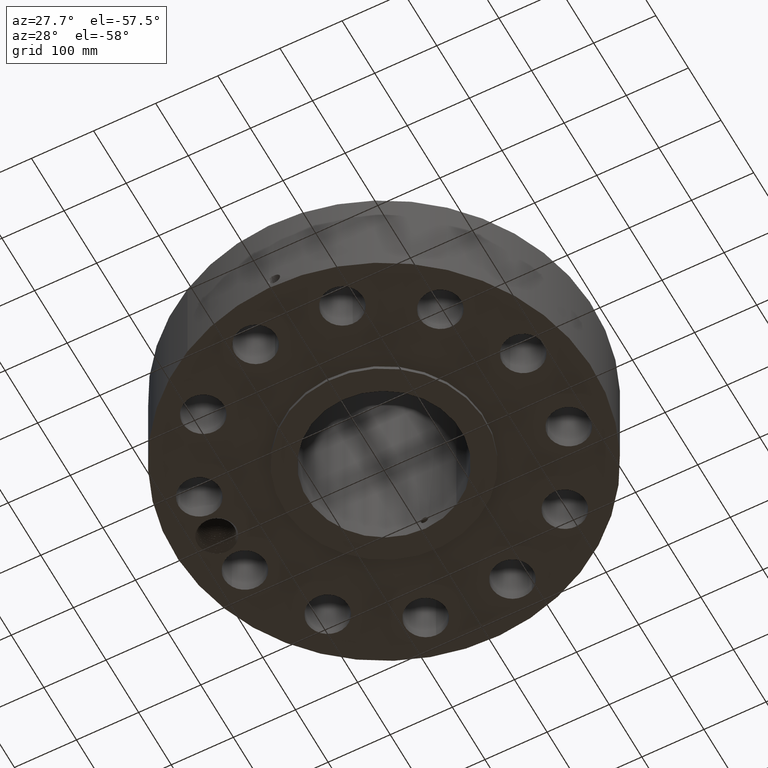
[diagram: clean part render]
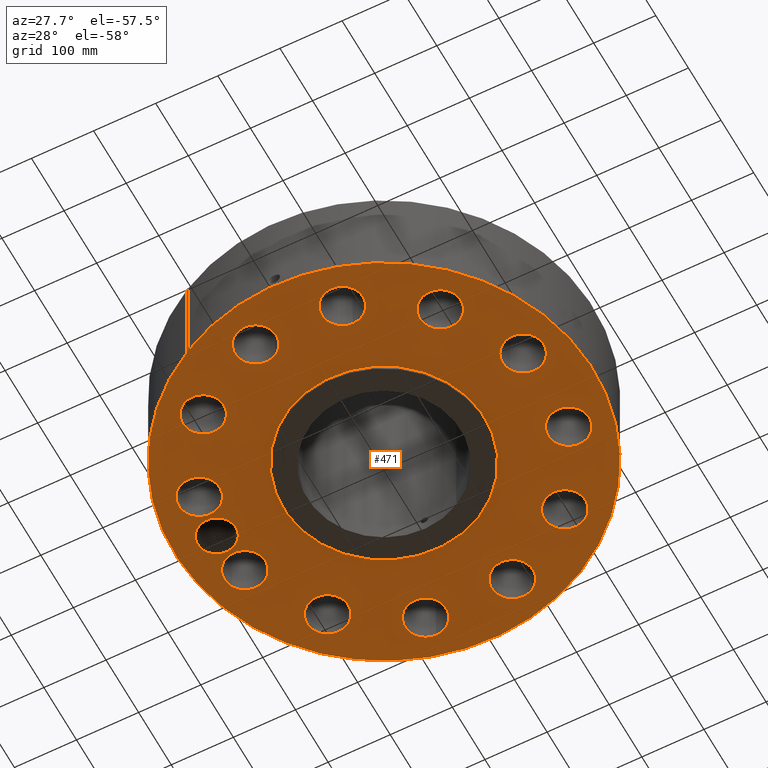
[diagram: same view with one face highlighted and labeled with its STEP entity id]
A machine part, auxiliary view. The second image highlights one B-rep face of the part: STEP entity #471.
In plain terms, the highlighted planar face has unit normal (0, 0, -1).
Its self-contained STEP definition (entity closure, byte-faithful):
#42=AXIS2_PLACEMENT_3D('Circle Axis2P3D',#40,#41,$) ;
#165=AXIS2_PLACEMENT_3D('Plane Axis2P3D',#162,#163,#164) ;
#169=AXIS2_PLACEMENT_3D('Circle Axis2P3D',#167,#168,$) ;
#178=AXIS2_PLACEMENT_3D('Circle Axis2P3D',#176,#177,$) ;
#187=AXIS2_PLACEMENT_3D('Circle Axis2P3D',#185,#186,$) ;
#239=AXIS2_PLACEMENT_3D('Circle Axis2P3D',#237,#238,$) ;
#248=AXIS2_PLACEMENT_3D('Circle Axis2P3D',#246,#247,$) ;
#257=AXIS2_PLACEMENT_3D('Circle Axis2P3D',#255,#256,$) ;
#266=AXIS2_PLACEMENT_3D('Circle Axis2P3D',#264,#265,$) ;
#275=AXIS2_PLACEMENT_3D('Circle Axis2P3D',#273,#274,$) ;
#284=AXIS2_PLACEMENT_3D('Circle Axis2P3D',#282,#283,$) ;
#293=AXIS2_PLACEMENT_3D('Circle Axis2P3D',#291,#292,$) ;
#302=AXIS2_PLACEMENT_3D('Circle Axis2P3D',#300,#301,$) ;
#311=AXIS2_PLACEMENT_3D('Circle Axis2P3D',#309,#310,$) ;
#320=AXIS2_PLACEMENT_3D('Circle Axis2P3D',#318,#319,$) ;
#329=AXIS2_PLACEMENT_3D('Circle Axis2P3D',#327,#328,$) ;
#338=AXIS2_PLACEMENT_3D('Circle Axis2P3D',#336,#337,$) ;
#347=AXIS2_PLACEMENT_3D('Circle Axis2P3D',#345,#346,$) ;
#356=AXIS2_PLACEMENT_3D('Circle Axis2P3D',#354,#355,$) ;
#365=AXIS2_PLACEMENT_3D('Circle Axis2P3D',#363,#364,$) ;
#374=AXIS2_PLACEMENT_3D('Circle Axis2P3D',#372,#373,$) ;
#383=AXIS2_PLACEMENT_3D('Circle Axis2P3D',#381,#382,$) ;
#392=AXIS2_PLACEMENT_3D('Circle Axis2P3D',#390,#391,$) ;
#401=AXIS2_PLACEMENT_3D('Circle Axis2P3D',#399,#400,$) ;
#410=AXIS2_PLACEMENT_3D('Circle Axis2P3D',#408,#409,$) ;
#419=AXIS2_PLACEMENT_3D('Circle Axis2P3D',#417,#418,$) ;
#428=AXIS2_PLACEMENT_3D('Circle Axis2P3D',#426,#427,$) ;
#437=AXIS2_PLACEMENT_3D('Circle Axis2P3D',#435,#436,$) ;
#446=AXIS2_PLACEMENT_3D('Circle Axis2P3D',#444,#445,$) ;
#455=AXIS2_PLACEMENT_3D('Circle Axis2P3D',#453,#454,$) ;
#464=AXIS2_PLACEMENT_3D('Circle Axis2P3D',#462,#463,$) ;
#40=CARTESIAN_POINT('Axis2P3D Location',(0.,0.,0.250000000001)) ;
#44=CARTESIAN_POINT('Vertex',(-6.35238838653,-11.6279689451,0.250000000001)) ;
#46=CARTESIAN_POINT('Vertex',(6.35238838653,11.6279689451,0.250000000001)) ;
#162=CARTESIAN_POINT('Axis2P3D Location',(0.,6.37500000003,0.250000000001)) ;
#167=CARTESIAN_POINT('Axis2P3D Location',(0.,0.,0.250000000001)) ;
#176=CARTESIAN_POINT('Axis2P3D Location',(-10.625,-1.1189649382E-015,0.250000000001)) ;
#180=CARTESIAN_POINT('Vertex',(-11.6649353359,0.568119263248,0.250000000001)) ;
#182=CARTESIAN_POINT('Vertex',(-10.6839916164,1.18353073015,0.250000000001)) ;
#185=CARTESIAN_POINT('Axis2P3D Location',(-10.625,-1.1189649382E-015,0.250000000001)) ;
#189=CARTESIAN_POINT('Vertex',(-10.6838744577,-1.18353656397,0.250000000001)) ;
#193=CARTESIAN_POINT('Control Point',(-9.37500000004,-3.35689481461E-015,0.250000000001)) ;
#194=CARTESIAN_POINT('Control Point',(-9.37825587713,-0.101444429286,0.250000000001)) ;
#195=CARTESIAN_POINT('Control Point',(-9.39180824717,-0.202401712864,0.250000000001)) ;
#196=CARTESIAN_POINT('Control Point',(-9.41558391048,-0.301441935531,0.250000000001)) ;
#197=CARTESIAN_POINT('Control Point',(-9.48288157817,-0.492990549443,0.250000000001)) ;
#198=CARTESIAN_POINT('Control Point',(-9.58713976057,-0.66629663446,0.250000000001)) ;
#199=CARTESIAN_POINT('Control Point',(-9.64791460144,-0.747169624272,0.250000000001)) ;
#200=CARTESIAN_POINT('Control Point',(-9.78496476851,-0.895071338881,0.250000000001)) ;
#201=CARTESIAN_POINT('Control Point',(-9.94868670996,-1.0115838403,0.250000000001)) ;
#202=CARTESIAN_POINT('Control Point',(-10.0361740958,-1.06109943653,0.250000000001)) ;
#203=CARTESIAN_POINT('Control Point',(-10.2144180942,-1.13885720551,0.250000000001)) ;
#204=CARTESIAN_POINT('Control Point',(-10.4039291192,-1.17941143356,0.250000000001)) ;
#205=CARTESIAN_POINT('Control Point',(-10.4973309572,-1.1899772707,0.250000000001)) ;
#206=CARTESIAN_POINT('Control Point',(-10.591046865,-1.19131458735,0.250000000001)) ;
#207=CARTESIAN_POINT('Control Point',(-10.6838744577,-1.18353656397,0.250000000001)) ;
#208=CARTESIAN_POINT('Vertex',(-9.37500000004,-7.83275456743E-015,0.250000000001)) ;
#212=CARTESIAN_POINT('Control Point',(-9.37500000004,-7.83275456743E-015,0.250000000001)) ;
#213=CARTESIAN_POINT('Control Point',(-9.37825524691,0.10142479263,0.250000000001)) ;
#214=CARTESIAN_POINT('Control Point',(-9.39180301368,0.202362779508,0.250000000001)) ;
#215=CARTESIAN_POINT('Control Point',(-9.41557891566,0.3014048971,0.250000000001)) ;
#216=CARTESIAN_POINT('Control Point',(-9.48287057806,0.492934525233,0.250000000001)) ;
#217=CARTESIAN_POINT('Control Point',(-9.58716256325,0.666307567772,0.250000000001)) ;
#218=CARTESIAN_POINT('Control Point',(-9.64794897145,0.747207601566,0.250000000001)) ;
#219=CARTESIAN_POINT('Control Point',(-9.78500526599,0.895116365231,0.250000000001)) ;
#220=CARTESIAN_POINT('Control Point',(-9.948796519,1.01165462046,0.250000000001)) ;
#221=CARTESIAN_POINT('Control Point',(-10.0362929583,1.0611581642,0.250000000001)) ;
#222=CARTESIAN_POINT('Control Point',(-10.1805973746,1.12407483148,0.250000000001)) ;
#223=CARTESIAN_POINT('Control Point',(-10.3322409785,1.16261205979,0.250000000001)) ;
#224=CARTESIAN_POINT('Control Point',(-10.3880840888,1.17332132365,0.250000000001)) ;
#225=CARTESIAN_POINT('Control Point',(-10.4808932074,1.18546280435,0.250000000001)) ;
#226=CARTESIAN_POINT('Control Point',(-10.5741700804,1.18847147679,0.250000000001)) ;
#227=CARTESIAN_POINT('Control Point',(-10.6108759843,1.18823752554,0.250000000001)) ;
#228=CARTESIAN_POINT('Control Point',(-10.6475073854,1.18658794481,0.250000000001)) ;
#229=CARTESIAN_POINT('Control Point',(-10.6839916164,1.18353073015,0.250000000001)) ;
#237=CARTESIAN_POINT('Axis2P3D Location',(10.2629619044,-2.74995235423,0.250000000001)) ;
#241=CARTESIAN_POINT('Vertex',(11.4125950604,-3.3779998098,0.250000000001)) ;
#243=CARTESIAN_POINT('Vertex',(9.11332874828,-2.12190489865,0.250000000001)) ;
#246=CARTESIAN_POINT('Axis2P3D Location',(10.2629619044,-2.74995235423,0.250000000001)) ;
#255=CARTESIAN_POINT('Axis2P3D Location',(0.,0.,0.250000000001)) ;
#259=CARTESIAN_POINT('Vertex',(3.05633780861,5.59458883207,0.250000000001)) ;
#261=CARTESIAN_POINT('Vertex',(-3.05633780861,-5.59458883207,0.250000000001)) ;
#264=CARTESIAN_POINT('Axis2P3D Location',(0.,0.,0.250000000001)) ;
#273=CARTESIAN_POINT('Axis2P3D Location',(7.51300955014,-7.51300955014,0.250000000001)) ;
#277=CARTESIAN_POINT('Vertex',(6.83142175973,-6.39428792079,0.250000000001)) ;
#279=CARTESIAN_POINT('Vertex',(8.19459734055,-8.63173117949,0.250000000001)) ;
#282=CARTESIAN_POINT('Axis2P3D Location',(7.51300955014,-7.51300955014,0.250000000001)) ;
#291=CARTESIAN_POINT('Axis2P3D Location',(2.74995235423,-10.2629619044,0.250000000001)) ;
#295=CARTESIAN_POINT('Vertex',(2.71904082749,-8.95332665838,0.250000000001)) ;
#297=CARTESIAN_POINT('Vertex',(2.78086388096,-11.5725971503,0.250000000001)) ;
#300=CARTESIAN_POINT('Axis2P3D Location',(2.74995235423,-10.2629619044,0.250000000001)) ;
#309=CARTESIAN_POINT('Axis2P3D Location',(-2.74995235423,-10.2629619044,0.250000000001)) ;
#313=CARTESIAN_POINT('Vertex',(-2.12190489865,-9.11332874828,0.250000000001)) ;
#315=CARTESIAN_POINT('Vertex',(-3.3779998098,-11.4125950604,0.250000000001)) ;
#318=CARTESIAN_POINT('Axis2P3D Location',(-2.74995235423,-10.2629619044,0.250000000001)) ;
#327=CARTESIAN_POINT('Axis2P3D Location',(-7.51300955014,-7.51300955014,0.250000000001)) ;
#331=CARTESIAN_POINT('Vertex',(-6.39428792079,-6.83142175973,0.250000000001)) ;
#333=CARTESIAN_POINT('Vertex',(-8.63173117949,-8.19459734055,0.250000000001)) ;
#336=CARTESIAN_POINT('Axis2P3D Location',(-7.51300955014,-7.51300955014,0.250000000001)) ;
#345=CARTESIAN_POINT('Axis2P3D Location',(-10.2629619044,-2.74995235423,0.250000000001)) ;
#349=CARTESIAN_POINT('Vertex',(-8.95332665838,-2.71904082749,0.250000000001)) ;
#351=CARTESIAN_POINT('Vertex',(-11.5725971503,-2.78086388096,0.250000000001)) ;
#354=CARTESIAN_POINT('Axis2P3D Location',(-10.2629619044,-2.74995235423,0.250000000001)) ;
#363=CARTESIAN_POINT('Axis2P3D Location',(-10.2629619044,2.74995235423,0.250000000001)) ;
#367=CARTESIAN_POINT('Vertex',(-9.11332874828,2.12190489865,0.250000000001)) ;
#369=CARTESIAN_POINT('Vertex',(-11.4125950604,3.3779998098,0.250000000001)) ;
#372=CARTESIAN_POINT('Axis2P3D Location',(-10.2629619044,2.74995235423,0.250000000001)) ;
#381=CARTESIAN_POINT('Axis2P3D Location',(-7.51300955014,7.51300955014,0.250000000001)) ;
#385=CARTESIAN_POINT('Vertex',(-6.83142175973,6.39428792079,0.250000000001)) ;
#387=CARTESIAN_POINT('Vertex',(-8.19459734055,8.63173117949,0.250000000001)) ;
#390=CARTESIAN_POINT('Axis2P3D Location',(-7.51300955014,7.51300955014,0.250000000001)) ;
#399=CARTESIAN_POINT('Axis2P3D Location',(-2.74995235423,10.2629619044,0.250000000001)) ;
#403=CARTESIAN_POINT('Vertex',(-2.71904082749,8.95332665838,0.250000000001)) ;
#405=CARTESIAN_POINT('Vertex',(-2.78086388096,11.5725971503,0.250000000001)) ;
#408=CARTESIAN_POINT('Axis2P3D Location',(-2.74995235423,10.2629619044,0.250000000001)) ;
#417=CARTESIAN_POINT('Axis2P3D Location',(2.74995235423,10.2629619044,0.250000000001)) ;
#421=CARTESIAN_POINT('Vertex',(2.12190489865,9.11332874828,0.250000000001)) ;
#423=CARTESIAN_POINT('Vertex',(3.3779998098,11.4125950604,0.250000000001)) ;
#426=CARTESIAN_POINT('Axis2P3D Location',(2.74995235423,10.2629619044,0.250000000001)) ;
#435=CARTESIAN_POINT('Axis2P3D Location',(7.51300955014,7.51300955014,0.250000000001)) ;
#439=CARTESIAN_POINT('Vertex',(6.39428792079,6.83142175973,0.250000000001)) ;
#441=CARTESIAN_POINT('Vertex',(8.63173117949,8.19459734055,0.250000000001)) ;
#444=CARTESIAN_POINT('Axis2P3D Location',(7.51300955014,7.51300955014,0.250000000001)) ;
#453=CARTESIAN_POINT('Axis2P3D Location',(10.2629619044,2.74995235423,0.250000000001)) ;
#457=CARTESIAN_POINT('Vertex',(8.95332665838,2.71904082749,0.250000000001)) ;
#459=CARTESIAN_POINT('Vertex',(11.5725971503,2.78086388096,0.250000000001)) ;
#462=CARTESIAN_POINT('Axis2P3D Location',(10.2629619044,2.74995235423,0.250000000001)) ;
#41=DIRECTION('Axis2P3D Direction',(0.,0.,-0.0393700787402)) ;
#163=DIRECTION('Axis2P3D Direction',(0.,0.,-0.0393700787402)) ;
#164=DIRECTION('Axis2P3D XDirection',(0.0393700787402,0.,0.)) ;
#168=DIRECTION('Axis2P3D Direction',(0.,0.,-0.0393700787402)) ;
#177=DIRECTION('Axis2P3D Direction',(0.,0.,-0.0393700787402)) ;
#186=DIRECTION('Axis2P3D Direction',(0.,0.,-0.0393700787402)) ;
#238=DIRECTION('Axis2P3D Direction',(0.,0.,-0.0393700787402)) ;
#247=DIRECTION('Axis2P3D Direction',(0.,0.,-0.0393700787402)) ;
#256=DIRECTION('Axis2P3D Direction',(0.,0.,-0.0393700787402)) ;
#265=DIRECTION('Axis2P3D Direction',(0.,0.,-0.0393700787402)) ;
#274=DIRECTION('Axis2P3D Direction',(0.,0.,-0.0393700787402)) ;
#283=DIRECTION('Axis2P3D Direction',(0.,0.,-0.0393700787402)) ;
#292=DIRECTION('Axis2P3D Direction',(0.,0.,-0.0393700787402)) ;
#301=DIRECTION('Axis2P3D Direction',(0.,0.,-0.0393700787402)) ;
#310=DIRECTION('Axis2P3D Direction',(0.,0.,-0.0393700787402)) ;
#319=DIRECTION('Axis2P3D Direction',(0.,0.,-0.0393700787402)) ;
#328=DIRECTION('Axis2P3D Direction',(0.,0.,-0.0393700787402)) ;
#337=DIRECTION('Axis2P3D Direction',(0.,0.,-0.0393700787402)) ;
#346=DIRECTION('Axis2P3D Direction',(0.,0.,-0.0393700787402)) ;
#355=DIRECTION('Axis2P3D Direction',(0.,0.,-0.0393700787402)) ;
#364=DIRECTION('Axis2P3D Direction',(0.,0.,-0.0393700787402)) ;
#373=DIRECTION('Axis2P3D Direction',(0.,0.,-0.0393700787402)) ;
#382=DIRECTION('Axis2P3D Direction',(0.,0.,-0.0393700787402)) ;
#391=DIRECTION('Axis2P3D Direction',(0.,0.,-0.0393700787402)) ;
#400=DIRECTION('Axis2P3D Direction',(0.,0.,-0.0393700787402)) ;
#409=DIRECTION('Axis2P3D Direction',(0.,0.,-0.0393700787402)) ;
#418=DIRECTION('Axis2P3D Direction',(0.,0.,-0.0393700787402)) ;
#427=DIRECTION('Axis2P3D Direction',(0.,0.,-0.0393700787402)) ;
#436=DIRECTION('Axis2P3D Direction',(0.,0.,-0.0393700787402)) ;
#445=DIRECTION('Axis2P3D Direction',(0.,0.,-0.0393700787402)) ;
#454=DIRECTION('Axis2P3D Direction',(0.,0.,-0.0393700787402)) ;
#463=DIRECTION('Axis2P3D Direction',(0.,0.,-0.0393700787402)) ;
#173=ORIENTED_EDGE('',*,*,#48,.T.) ;
#174=ORIENTED_EDGE('',*,*,#171,.T.) ;
#232=ORIENTED_EDGE('',*,*,#184,.F.) ;
#233=ORIENTED_EDGE('',*,*,#191,.F.) ;
#234=ORIENTED_EDGE('',*,*,#210,.F.) ;
#235=ORIENTED_EDGE('',*,*,#230,.T.) ;
#252=ORIENTED_EDGE('',*,*,#245,.F.) ;
#253=ORIENTED_EDGE('',*,*,#250,.F.) ;
#270=ORIENTED_EDGE('',*,*,#263,.F.) ;
#271=ORIENTED_EDGE('',*,*,#268,.F.) ;
#288=ORIENTED_EDGE('',*,*,#281,.F.) ;
#289=ORIENTED_EDGE('',*,*,#286,.F.) ;
#306=ORIENTED_EDGE('',*,*,#299,.F.) ;
#307=ORIENTED_EDGE('',*,*,#304,.F.) ;
#324=ORIENTED_EDGE('',*,*,#317,.F.) ;
#325=ORIENTED_EDGE('',*,*,#322,.F.) ;
#342=ORIENTED_EDGE('',*,*,#335,.F.) ;
#343=ORIENTED_EDGE('',*,*,#340,.F.) ;
#360=ORIENTED_EDGE('',*,*,#353,.F.) ;
#361=ORIENTED_EDGE('',*,*,#358,.F.) ;
#378=ORIENTED_EDGE('',*,*,#371,.F.) ;
#379=ORIENTED_EDGE('',*,*,#376,.F.) ;
#396=ORIENTED_EDGE('',*,*,#389,.F.) ;
#397=ORIENTED_EDGE('',*,*,#394,.F.) ;
#414=ORIENTED_EDGE('',*,*,#407,.F.) ;
#415=ORIENTED_EDGE('',*,*,#412,.F.) ;
#432=ORIENTED_EDGE('',*,*,#425,.F.) ;
#433=ORIENTED_EDGE('',*,*,#430,.F.) ;
#450=ORIENTED_EDGE('',*,*,#443,.F.) ;
#451=ORIENTED_EDGE('',*,*,#448,.F.) ;
#468=ORIENTED_EDGE('',*,*,#461,.F.) ;
#469=ORIENTED_EDGE('',*,*,#466,.F.) ;
#236=FACE_BOUND('',#231,.T.) ;
#254=FACE_BOUND('',#251,.T.) ;
#272=FACE_BOUND('',#269,.T.) ;
#290=FACE_BOUND('',#287,.T.) ;
#308=FACE_BOUND('',#305,.T.) ;
#326=FACE_BOUND('',#323,.T.) ;
#344=FACE_BOUND('',#341,.T.) ;
#362=FACE_BOUND('',#359,.T.) ;
#380=FACE_BOUND('',#377,.T.) ;
#398=FACE_BOUND('',#395,.T.) ;
#416=FACE_BOUND('',#413,.T.) ;
#434=FACE_BOUND('',#431,.T.) ;
#452=FACE_BOUND('',#449,.T.) ;
#470=FACE_BOUND('',#467,.T.) ;
#471=ADVANCED_FACE('PartBody',(#175,#236,#254,#272,#290,#308,#326,#344,#362,#380,#398,#416,#434,#452,#470),#166,.T.) ;
#192=B_SPLINE_CURVE_WITH_KNOTS('',5,(#193,#194,#195,#196,#197,#198,#199,#200,#201,#202,#203,#204,#205,#206,#207),.UNSPECIFIED.,.F.,.U.,(6,3,3,3,6),(0.,17.7884359662,35.5918643365,53.4046916281,70.1680380641),.UNSPECIFIED.) ;
#211=B_SPLINE_CURVE_WITH_KNOTS('',5,(#212,#213,#214,#215,#216,#217,#218,#219,#220,#221,#222,#223,#224,#225,#226,#227,#228,#229),.UNSPECIFIED.,.F.,.U.,(6,3,3,3,3,6),(0.,17.7849926485,35.572832561,53.3542606166,63.5114910834,70.1022827247),.UNSPECIFIED.) ;
#43=CIRCLE('generated circle',#42,13.2500000001) ;
#170=CIRCLE('generated circle',#169,13.2500000001) ;
#179=CIRCLE('generated circle',#178,1.185) ;
#188=CIRCLE('generated circle',#187,1.185) ;
#240=CIRCLE('generated circle',#239,1.31000000001) ;
#249=CIRCLE('generated circle',#248,1.31000000001) ;
#258=CIRCLE('generated circle',#257,6.37500000003) ;
#267=CIRCLE('generated circle',#266,6.37500000003) ;
#276=CIRCLE('generated circle',#275,1.31000000001) ;
#285=CIRCLE('generated circle',#284,1.31000000001) ;
#294=CIRCLE('generated circle',#293,1.31000000001) ;
#303=CIRCLE('generated circle',#302,1.31000000001) ;
#312=CIRCLE('generated circle',#311,1.31000000001) ;
#321=CIRCLE('generated circle',#320,1.31000000001) ;
#330=CIRCLE('generated circle',#329,1.31000000001) ;
#339=CIRCLE('generated circle',#338,1.31000000001) ;
#348=CIRCLE('generated circle',#347,1.31000000001) ;
#357=CIRCLE('generated circle',#356,1.31000000001) ;
#366=CIRCLE('generated circle',#365,1.31000000001) ;
#375=CIRCLE('generated circle',#374,1.31000000001) ;
#384=CIRCLE('generated circle',#383,1.31000000001) ;
#393=CIRCLE('generated circle',#392,1.31000000001) ;
#402=CIRCLE('generated circle',#401,1.31000000001) ;
#411=CIRCLE('generated circle',#410,1.31000000001) ;
#420=CIRCLE('generated circle',#419,1.31000000001) ;
#429=CIRCLE('generated circle',#428,1.31000000001) ;
#438=CIRCLE('generated circle',#437,1.31000000001) ;
#447=CIRCLE('generated circle',#446,1.31000000001) ;
#456=CIRCLE('generated circle',#455,1.31000000001) ;
#465=CIRCLE('generated circle',#464,1.31000000001) ;
#48=EDGE_CURVE('',#45,#47,#43,.T.) ;
#171=EDGE_CURVE('',#47,#45,#170,.T.) ;
#184=EDGE_CURVE('',#181,#183,#179,.T.) ;
#191=EDGE_CURVE('',#190,#181,#188,.T.) ;
#210=EDGE_CURVE('',#209,#190,#192,.T.) ;
#230=EDGE_CURVE('',#209,#183,#211,.T.) ;
#245=EDGE_CURVE('',#242,#244,#240,.T.) ;
#250=EDGE_CURVE('',#244,#242,#249,.T.) ;
#263=EDGE_CURVE('',#260,#262,#258,.T.) ;
#268=EDGE_CURVE('',#262,#260,#267,.T.) ;
#281=EDGE_CURVE('',#278,#280,#276,.T.) ;
#286=EDGE_CURVE('',#280,#278,#285,.T.) ;
#299=EDGE_CURVE('',#296,#298,#294,.T.) ;
#304=EDGE_CURVE('',#298,#296,#303,.T.) ;
#317=EDGE_CURVE('',#314,#316,#312,.T.) ;
#322=EDGE_CURVE('',#316,#314,#321,.T.) ;
#335=EDGE_CURVE('',#332,#334,#330,.T.) ;
#340=EDGE_CURVE('',#334,#332,#339,.T.) ;
#353=EDGE_CURVE('',#350,#352,#348,.T.) ;
#358=EDGE_CURVE('',#352,#350,#357,.T.) ;
#371=EDGE_CURVE('',#368,#370,#366,.T.) ;
#376=EDGE_CURVE('',#370,#368,#375,.T.) ;
#389=EDGE_CURVE('',#386,#388,#384,.T.) ;
#394=EDGE_CURVE('',#388,#386,#393,.T.) ;
#407=EDGE_CURVE('',#404,#406,#402,.T.) ;
#412=EDGE_CURVE('',#406,#404,#411,.T.) ;
#425=EDGE_CURVE('',#422,#424,#420,.T.) ;
#430=EDGE_CURVE('',#424,#422,#429,.T.) ;
#443=EDGE_CURVE('',#440,#442,#438,.T.) ;
#448=EDGE_CURVE('',#442,#440,#447,.T.) ;
#461=EDGE_CURVE('',#458,#460,#456,.T.) ;
#466=EDGE_CURVE('',#460,#458,#465,.T.) ;
#172=EDGE_LOOP('',(#173,#174)) ;
#231=EDGE_LOOP('',(#232,#233,#234,#235)) ;
#251=EDGE_LOOP('',(#252,#253)) ;
#269=EDGE_LOOP('',(#270,#271)) ;
#287=EDGE_LOOP('',(#288,#289)) ;
#305=EDGE_LOOP('',(#306,#307)) ;
#323=EDGE_LOOP('',(#324,#325)) ;
#341=EDGE_LOOP('',(#342,#343)) ;
#359=EDGE_LOOP('',(#360,#361)) ;
#377=EDGE_LOOP('',(#378,#379)) ;
#395=EDGE_LOOP('',(#396,#397)) ;
#413=EDGE_LOOP('',(#414,#415)) ;
#431=EDGE_LOOP('',(#432,#433)) ;
#449=EDGE_LOOP('',(#450,#451)) ;
#467=EDGE_LOOP('',(#468,#469)) ;
#175=FACE_OUTER_BOUND('',#172,.T.) ;
#166=PLANE('',#165) ;
#45=VERTEX_POINT('',#44) ;
#47=VERTEX_POINT('',#46) ;
#181=VERTEX_POINT('',#180) ;
#183=VERTEX_POINT('',#182) ;
#190=VERTEX_POINT('',#189) ;
#209=VERTEX_POINT('',#208) ;
#242=VERTEX_POINT('',#241) ;
#244=VERTEX_POINT('',#243) ;
#260=VERTEX_POINT('',#259) ;
#262=VERTEX_POINT('',#261) ;
#278=VERTEX_POINT('',#277) ;
#280=VERTEX_POINT('',#279) ;
#296=VERTEX_POINT('',#295) ;
#298=VERTEX_POINT('',#297) ;
#314=VERTEX_POINT('',#313) ;
#316=VERTEX_POINT('',#315) ;
#332=VERTEX_POINT('',#331) ;
#334=VERTEX_POINT('',#333) ;
#350=VERTEX_POINT('',#349) ;
#352=VERTEX_POINT('',#351) ;
#368=VERTEX_POINT('',#367) ;
#370=VERTEX_POINT('',#369) ;
#386=VERTEX_POINT('',#385) ;
#388=VERTEX_POINT('',#387) ;
#404=VERTEX_POINT('',#403) ;
#406=VERTEX_POINT('',#405) ;
#422=VERTEX_POINT('',#421) ;
#424=VERTEX_POINT('',#423) ;
#440=VERTEX_POINT('',#439) ;
#442=VERTEX_POINT('',#441) ;
#458=VERTEX_POINT('',#457) ;
#460=VERTEX_POINT('',#459) ;